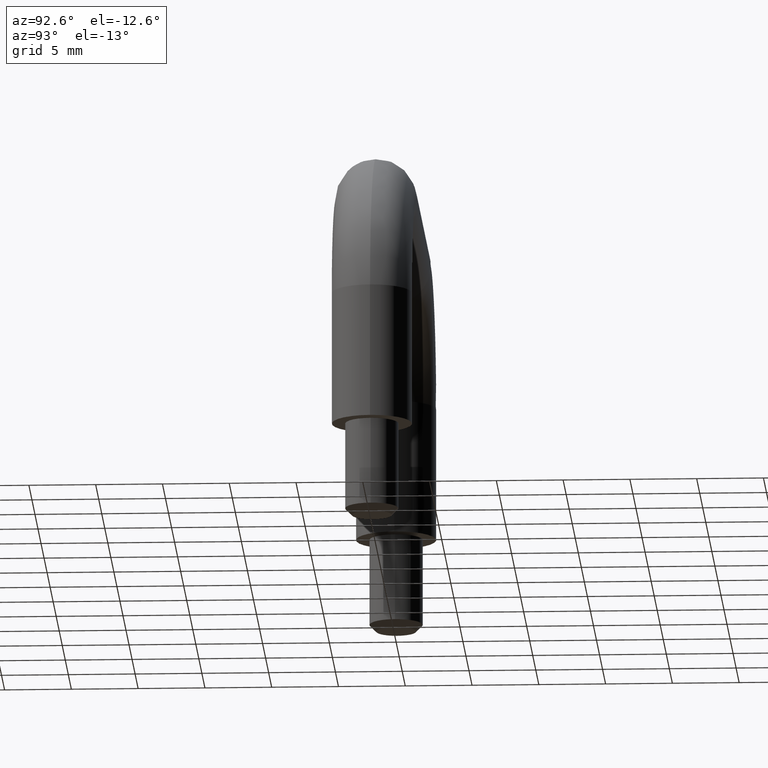
[diagram: clean part render]
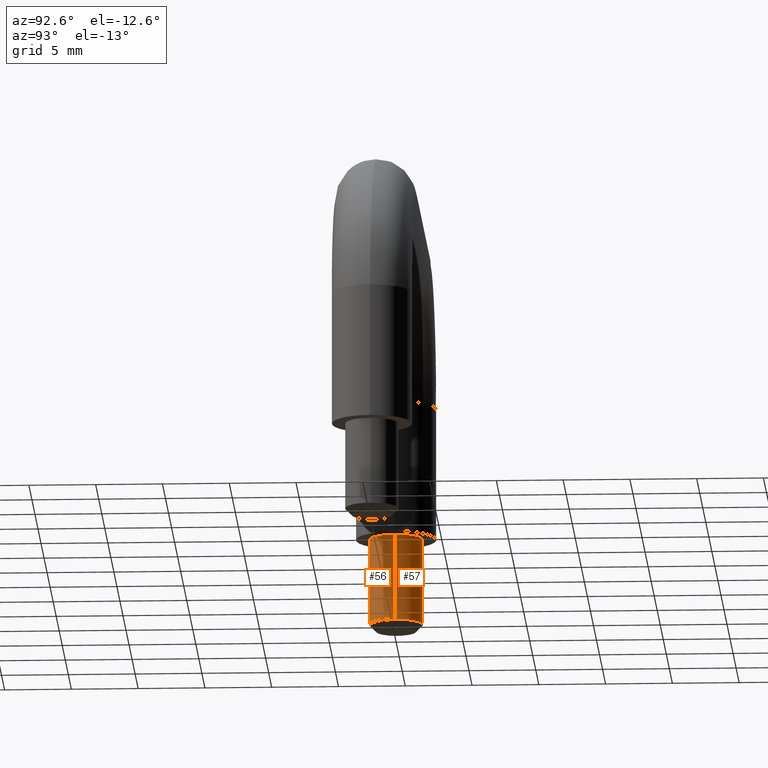
[diagram: same view with one multi-face feature highlighted, each face labeled with its STEP entity id]
A machine part, auxiliary view. The highlighted faces form ONE feature: a constant-radius fillet chain: 2 tangent blend faces with common blend radius 2 mm. The faces share edges in the B-rep.
Their STEP definitions:
[1] entity #57 (Cylinder):
#57=ADVANCED_FACE('',(#235),#234,.T.);
#234=CYLINDRICAL_SURFACE('',#518,2.00000000000E+00);
#235=FACE_OUTER_BOUND('',#519,.T.);
#515=CARTESIAN_POINT('',(-1.99999999999E+01,0.00000000000E+00,-1.92500000000E+01));
#516=DIRECTION('',(0.00000000000E+00,0.00000000000E+00,-1.00000000000E+00));
#517=DIRECTION('',(1.00000000000E+00,-0.00000000000E+00,0.00000000000E+00));
#518=AXIS2_PLACEMENT_3D('',#515,#516,#517);
#519=EDGE_LOOP('',(#616,#617,#618,#619));
#616=ORIENTED_EDGE('',*,*,#651,.F.);
#617=ORIENTED_EDGE('',*,*,#671,.T.);
#618=ORIENTED_EDGE('',*,*,#673,.T.);
#619=ORIENTED_EDGE('',*,*,#672,.F.);
#651=EDGE_CURVE('',#775,#774,#782,.T.);
#671=EDGE_CURVE('',#775,#905,#912,.T.);
#672=EDGE_CURVE('',#774,#904,#918,.T.);
#673=EDGE_CURVE('',#905,#904,#924,.T.);
#774=VERTEX_POINT('',#1023);
#775=VERTEX_POINT('',#1024);
#782=CIRCLE('',#1032,2.00000000000E+00);
#904=VERTEX_POINT('',#1099);
#905=VERTEX_POINT('',#1100);
#912=(BOUNDED_CURVE() B_SPLINE_CURVE(1,(#1105,#1106),.UNSPECIFIED.,.F.,.F.) B_SPLINE_CURVE_WITH_KNOTS((2,2),(8.33333347523E-02,9.16666664312E-01),.UNSPECIFIED.) CURVE() GEOMETRIC_REPRESENTATION_ITEM() RATIONAL_B_SPLINE_CURVE((1.00000000000E+00,1.00000000000E+00)) REPRESENTATION_ITEM('') );
#918=(BOUNDED_CURVE() B_SPLINE_CURVE(1,(#1107,#1108),.UNSPECIFIED.,.F.,.F.) B_SPLINE_CURVE_WITH_KNOTS((2,2),(8.33333333333E-02,9.16666666667E-01),.UNSPECIFIED.) CURVE() GEOMETRIC_REPRESENTATION_ITEM() RATIONAL_B_SPLINE_CURVE((7.50000000000E-01,7.50000000000E-01)) REPRESENTATION_ITEM('') );
#924=CIRCLE('',#1112,2.00000000000E+00);
#1023=CARTESIAN_POINT('',(-2.19999999999E+01,2.44921270764E-16,-1.60000000000E+01));
#1024=CARTESIAN_POINT('',(-1.79999999999E+01,7.40148683083E-17,-1.60000000000E+01));
#1029=CARTESIAN_POINT('',(-1.99999999999E+01,0.00000000000E+00,-1.60000000000E+01));
#1030=DIRECTION('',(-0.00000000000E+00,0.00000000000E+00,1.00000000000E+00));
#1031=DIRECTION('',(-1.00000000000E+00,-0.00000000000E+00,-0.00000000000E+00));
#1032=AXIS2_PLACEMENT_3D('',#1029,#1030,#1031);
#1099=CARTESIAN_POINT('',(-2.19999999999E+01,2.44921270764E-16,-2.25000000000E+01));
#1100=CARTESIAN_POINT('',(-1.79999999999E+01,7.40148683083E-17,-2.25000000000E+01));
#1105=CARTESIAN_POINT('',(-1.79999999999E+01,0.00000000000E+00,-1.60000000111E+01));
#1106=CARTESIAN_POINT('',(-1.79999999999E+01,0.00000000000E+00,-2.24999999816E+01));
#1107=CARTESIAN_POINT('',(-2.19999999999E+01,7.40148683083E-17,-1.60000000000E+01));
#1108=CARTESIAN_POINT('',(-2.19999999999E+01,7.40148683083E-17,-2.25000000000E+01));
#1109=CARTESIAN_POINT('',(-1.99999999999E+01,0.00000000000E+00,-2.25000000000E+01));
#1110=DIRECTION('',(-0.00000000000E+00,0.00000000000E+00,1.00000000000E+00));
#1111=DIRECTION('',(-1.00000000000E+00,-0.00000000000E+00,-0.00000000000E+00));
#1112=AXIS2_PLACEMENT_3D('',#1109,#1110,#1111);
[2] entity #56 (Cylinder):
#56=ADVANCED_FACE('',(#225),#224,.T.);
#224=CYLINDRICAL_SURFACE('',#513,2.00000000000E+00);
#225=FACE_OUTER_BOUND('',#514,.T.);
#510=CARTESIAN_POINT('',(-1.99999999999E+01,0.00000000000E+00,-1.92500000000E+01));
#511=DIRECTION('',(0.00000000000E+00,0.00000000000E+00,-1.00000000000E+00));
#512=DIRECTION('',(1.00000000000E+00,-0.00000000000E+00,0.00000000000E+00));
#513=AXIS2_PLACEMENT_3D('',#510,#511,#512);
#514=EDGE_LOOP('',(#612,#613,#614,#615));
#612=ORIENTED_EDGE('',*,*,#670,.T.);
#613=ORIENTED_EDGE('',*,*,#671,.F.);
#614=ORIENTED_EDGE('',*,*,#650,.F.);
#615=ORIENTED_EDGE('',*,*,#672,.T.);
#650=EDGE_CURVE('',#774,#775,#776,.T.);
#670=EDGE_CURVE('',#904,#905,#906,.T.);
#671=EDGE_CURVE('',#775,#905,#912,.T.);
#672=EDGE_CURVE('',#774,#904,#918,.T.);
#774=VERTEX_POINT('',#1023);
#775=VERTEX_POINT('',#1024);
#776=CIRCLE('',#1028,2.00000000000E+00);
#904=VERTEX_POINT('',#1099);
#905=VERTEX_POINT('',#1100);
#906=CIRCLE('',#1104,2.00000000000E+00);
#912=(BOUNDED_CURVE() B_SPLINE_CURVE(1,(#1105,#1106),.UNSPECIFIED.,.F.,.F.) B_SPLINE_CURVE_WITH_KNOTS((2,2),(8.33333347523E-02,9.16666664312E-01),.UNSPECIFIED.) CURVE() GEOMETRIC_REPRESENTATION_ITEM() RATIONAL_B_SPLINE_CURVE((1.00000000000E+00,1.00000000000E+00)) REPRESENTATION_ITEM('') );
#918=(BOUNDED_CURVE() B_SPLINE_CURVE(1,(#1107,#1108),.UNSPECIFIED.,.F.,.F.) B_SPLINE_CURVE_WITH_KNOTS((2,2),(8.33333333333E-02,9.16666666667E-01),.UNSPECIFIED.) CURVE() GEOMETRIC_REPRESENTATION_ITEM() RATIONAL_B_SPLINE_CURVE((7.50000000000E-01,7.50000000000E-01)) REPRESENTATION_ITEM('') );
#1023=CARTESIAN_POINT('',(-2.19999999999E+01,2.44921270764E-16,-1.60000000000E+01));
#1024=CARTESIAN_POINT('',(-1.79999999999E+01,7.40148683083E-17,-1.60000000000E+01));
#1025=CARTESIAN_POINT('',(-1.99999999999E+01,0.00000000000E+00,-1.60000000000E+01));
#1026=DIRECTION('',(-0.00000000000E+00,0.00000000000E+00,1.00000000000E+00));
#1027=DIRECTION('',(-1.00000000000E+00,-0.00000000000E+00,-0.00000000000E+00));
#1028=AXIS2_PLACEMENT_3D('',#1025,#1026,#1027);
#1099=CARTESIAN_POINT('',(-2.19999999999E+01,2.44921270764E-16,-2.25000000000E+01));
#1100=CARTESIAN_POINT('',(-1.79999999999E+01,7.40148683083E-17,-2.25000000000E+01));
#1101=CARTESIAN_POINT('',(-1.99999999999E+01,0.00000000000E+00,-2.25000000000E+01));
#1102=DIRECTION('',(-0.00000000000E+00,0.00000000000E+00,1.00000000000E+00));
#1103=DIRECTION('',(-1.00000000000E+00,-0.00000000000E+00,-0.00000000000E+00));
#1104=AXIS2_PLACEMENT_3D('',#1101,#1102,#1103);
#1105=CARTESIAN_POINT('',(-1.79999999999E+01,0.00000000000E+00,-1.60000000111E+01));
#1106=CARTESIAN_POINT('',(-1.79999999999E+01,0.00000000000E+00,-2.24999999816E+01));
#1107=CARTESIAN_POINT('',(-2.19999999999E+01,7.40148683083E-17,-1.60000000000E+01));
#1108=CARTESIAN_POINT('',(-2.19999999999E+01,7.40148683083E-17,-2.25000000000E+01));